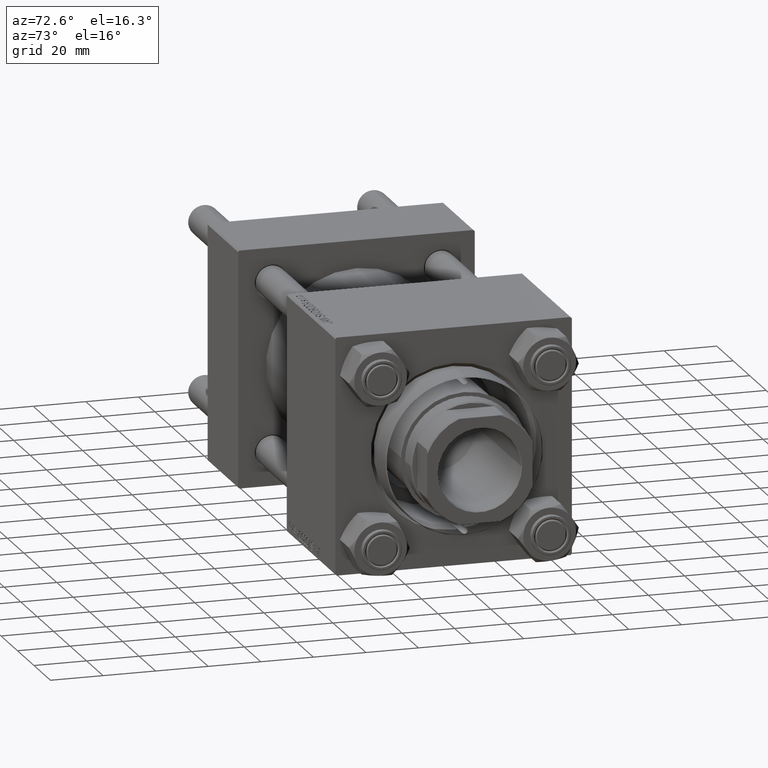
[diagram: clean part render]
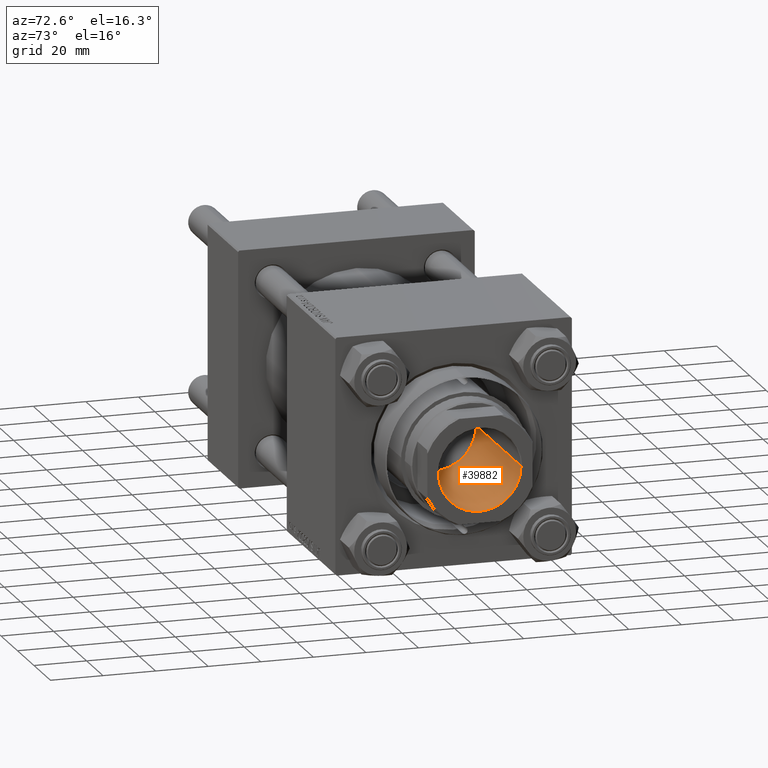
[diagram: same view with one face highlighted and labeled with its STEP entity id]
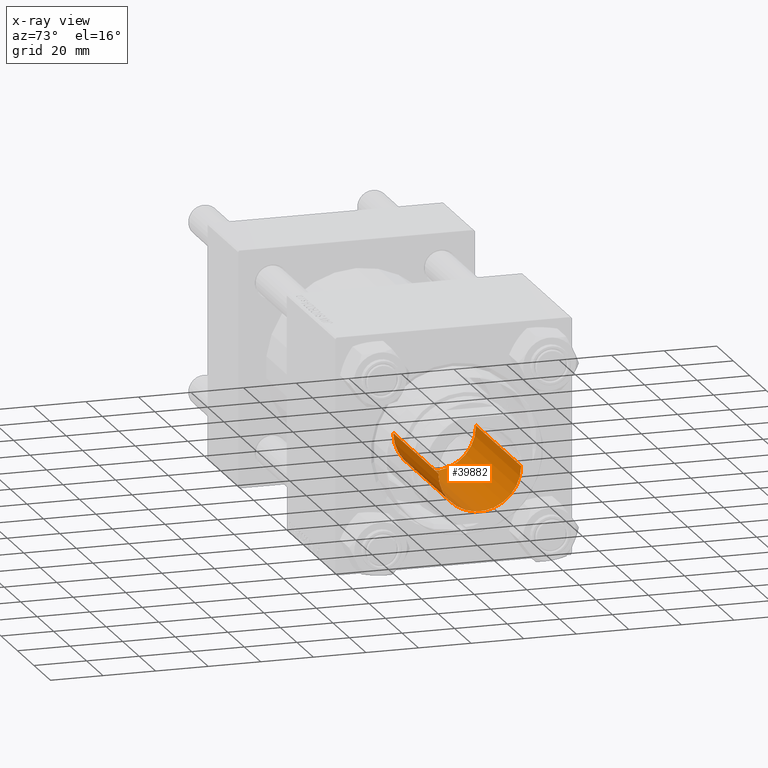
[diagram: x-ray of the same camera — body ghosted, the highlighted face saturated]
A machine part, auxiliary view. The second image highlights one B-rep face of the part: STEP entity #39882.
The next image is the same camera in x-ray: the body ghosted, the highlighted face saturated — about 1% of this face is hidden behind the body in this view.
In plain terms, the highlighted cylindrical surface (partial cylindrical patch) has radius 15.75 mm, axis along (1, 0, -0).
Its self-contained STEP definition (entity closure, byte-faithful):
#2183 = CYLINDRICAL_SURFACE ( 'NONE', #37361, 15.74999999999999289 ) ;
#2565 = AXIS2_PLACEMENT_3D ( 'NONE', #42868, #11091, #39088 ) ;
#7794 = EDGE_CURVE ( 'NONE', #29371, #12428, #17276, .T. ) ;
#8786 = AXIS2_PLACEMENT_3D ( 'NONE', #16038, #16775, #42775 ) ;
#9181 = VECTOR ( 'NONE', #24341, 1000.000000000000000 ) ;
#10233 = DIRECTION ( 'NONE',  ( -0.000000000000000000, -0.000000000000000000, 1.000000000000000000 ) ) ;
#11091 = DIRECTION ( 'NONE',  ( -0.000000000000000000, -0.000000000000000000, 1.000000000000000000 ) ) ;
#12428 = VERTEX_POINT ( 'NONE', #43606 ) ;
#14353 = ORIENTED_EDGE ( 'NONE', *, *, #37735, .F. ) ;
#14579 = DIRECTION ( 'NONE',  ( -0.000000000000000000, -0.000000000000000000, 1.000000000000000000 ) ) ;
#14832 = CARTESIAN_POINT ( 'NONE',  ( -15.74999999999999289, 1.928818708657080556E-15, 150.0000000000000284 ) ) ;
#16038 = CARTESIAN_POINT ( 'NONE',  ( 0.000000000000000000, 0.000000000000000000, 149.6999999999999886 ) ) ;
#16775 = DIRECTION ( 'NONE',  ( 0.000000000000000000, 0.000000000000000000, 1.000000000000000000 ) ) ;
#17276 = LINE ( 'NONE', #32680, #9181 ) ;
#20039 = EDGE_CURVE ( 'NONE', #12428, #24220, #23326, .T. ) ;
#20202 = ORIENTED_EDGE ( 'NONE', *, *, #34978, .F. ) ;
#21161 = EDGE_LOOP ( 'NONE', ( #14353, #20202, #45090, #35040 ) ) ;
#21980 = VECTOR ( 'NONE', #14579, 1000.000000000000000 ) ;
#23326 = CIRCLE ( 'NONE', #8786, 15.74999999999999289 ) ;
#24220 = VERTEX_POINT ( 'NONE', #38417 ) ;
#24341 = DIRECTION ( 'NONE',  ( -0.000000000000000000, -0.000000000000000000, 1.000000000000000000 ) ) ;
#25634 = DIRECTION ( 'NONE',  ( 1.000000000000000000, 0.000000000000000000, 0.000000000000000000 ) ) ;
#29371 = VERTEX_POINT ( 'NONE', #44579 ) ;
#32680 = CARTESIAN_POINT ( 'NONE',  ( 15.74999999999999289, 0.000000000000000000, 150.0000000000000284 ) ) ;
#32972 = FACE_OUTER_BOUND ( 'NONE', #21161, .T. ) ;
#33513 = LINE ( 'NONE', #14832, #21980 ) ;
#34151 = CARTESIAN_POINT ( 'NONE',  ( -15.74999999999998934, 1.928818708657080161E-15, 95.00000000000001421 ) ) ;
#34978 = EDGE_CURVE ( 'NONE', #29371, #41905, #45281, .T. ) ;
#35040 = ORIENTED_EDGE ( 'NONE', *, *, #20039, .T. ) ;
#37361 = AXIS2_PLACEMENT_3D ( 'NONE', #47842, #10233, #25634 ) ;
#37735 = EDGE_CURVE ( 'NONE', #41905, #24220, #33513, .T. ) ;
#38417 = CARTESIAN_POINT ( 'NONE',  ( -15.74999999999999289, 1.928818708657080556E-15, 149.6999999999999886 ) ) ;
#39088 = DIRECTION ( 'NONE',  ( 1.000000000000000000, 0.000000000000000000, 0.000000000000000000 ) ) ;
#39882 = ADVANCED_FACE ( 'NONE', ( #32972 ), #2183, .F. ) ;
#41905 = VERTEX_POINT ( 'NONE', #34151 ) ;
#42775 = DIRECTION ( 'NONE',  ( 1.000000000000000000, 0.000000000000000000, 0.000000000000000000 ) ) ;
#42868 = CARTESIAN_POINT ( 'NONE',  ( 0.000000000000000000, 0.000000000000000000, 95.00000000000001421 ) ) ;
#43606 = CARTESIAN_POINT ( 'NONE',  ( 15.74999999999999289, 0.000000000000000000, 149.6999999999999886 ) ) ;
#44579 = CARTESIAN_POINT ( 'NONE',  ( 15.74999999999998934, 0.000000000000000000, 95.00000000000001421 ) ) ;
#45090 = ORIENTED_EDGE ( 'NONE', *, *, #7794, .T. ) ;
#45281 = CIRCLE ( 'NONE', #2565, 15.74999999999998934 ) ;
#47842 = CARTESIAN_POINT ( 'NONE',  ( 0.000000000000000000, 0.000000000000000000, 150.0000000000000284 ) ) ;